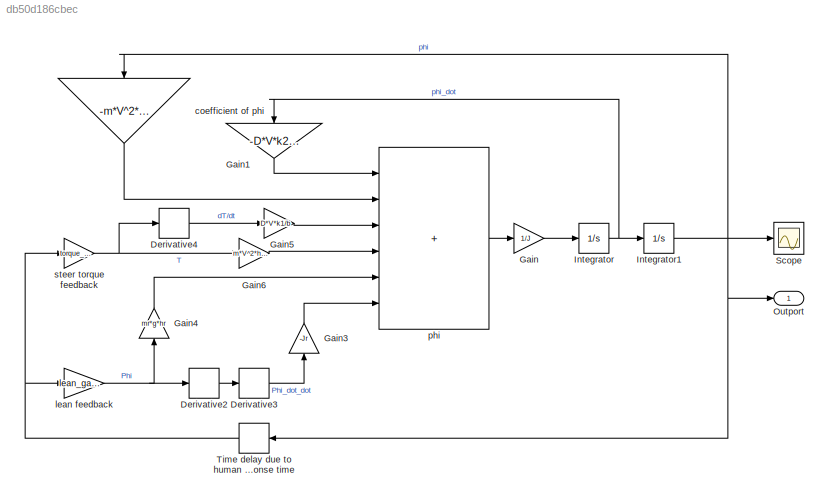
MODEL slx_db50d186cbec
KIND model
CONFIG AbsTol = auto
CONFIG EnableMultiTasking = off
CONFIG FixedStep = 0.1
CONFIG MaxStep = auto
CONFIG MinStep = auto
CONFIG RelTol = 1e-3
CONFIG SampleTimeConstraint = Unconstrained
CONFIG SolverName = FixedStepAuto
CONFIG StartTime = 0.0
CONFIG StopTime = t_end
BLOCK [Derivative] Derivative2
BLOCK [Derivative] Derivative3
BLOCK [Derivative] Derivative4
BLOCK [Gain] Gain
  Gain = 1/J
BLOCK [Gain] Gain1
  Gain = -D*V*k2/b
  NameLocation = left
BLOCK [Gain] Gain3
  Gain = -Jr
  NameLocation = left
BLOCK [Gain] Gain4
  Gain = mr*g*hr
  NameLocation = left
BLOCK [Gain] Gain5
  Gain = D*V*k1/b
BLOCK [Gain] Gain6
  Gain = m*V^2*h*k1/b
BLOCK [Integrator] Integrator
  Ports = [1, 1]
BLOCK [Integrator] Integrator1
  InitialCondition = phi0
  Ports = [1, 1]
BLOCK [Outport] Outport
BLOCK [Scope] Scope
  Floating = off
  NumInputPorts = 1
  Ports = [1]
  ScopeSpecificationString = Simulink.scopes.TimeScopeBlockCfg('CurrentConfiguration', extmgr.ConfigurationSet(extmgr.Configuration('Core','General UI',true),extmgr.Configuration('Core','Source UI',true),extmgr.Configuration('Sources','WiredSimulink',true),extmgr.Configuration('Visuals','Time Domain',true,'SerializedDisplays',{struct('MinYLimReal','-0.02229','MaxYLimReal','0.09944','YLabelReal','','MinYLimMag','0.00000','MaxY...<+1351ch>
BLOCK [Delay] Time delay due to human response time
  DelayLength = delay
  InitialCondition = phi0
  InputPortMap = u0
  Ports = [1, 1]
BLOCK [Gain] coefficient of phi
  Gain = -m*V^2*h*k2/b + m*g*h
  NameLocation = left
BLOCK [Gain] lean feedback
  Gain = lean_gain
BLOCK [Sum] phi
  IconShape = rectangular
  Inputs = ++++++
  Ports = [6, 1]
BLOCK [Gain] steer torque feedback
  Gain = torque_gain
LINE Derivative2:1 -> Derivative3:1
LINE Derivative3:1 -> Gain3:1
LINE Derivative4:1 -> Gain5:1
LINE Gain1:1 -> phi:1
LINE Gain3:1 -> phi:6
LINE Gain4:1 -> phi:5
LINE Gain5:1 -> phi:3
LINE Gain6:1 -> phi:4
LINE Gain:1 -> Integrator:1
NET Integrator1:1 -> Outport:1, Scope:1, Time delay due to human response time:1, coefficient of phi:1
NET Integrator:1 -> Gain1:1, Integrator1:1
NET Time delay due to human response time:1 -> lean feedback:1, steer torque feedback:1
LINE coefficient of phi:1 -> phi:2
NET lean feedback:1 -> Derivative2:1, Gain4:1
LINE phi:1 -> Gain:1
NET steer torque feedback:1 -> Derivative4:1, Gain6:1
note: NET lines group one-source signal fan-out (src -> all destinations, sorted); 1:1 wires keep LINE
